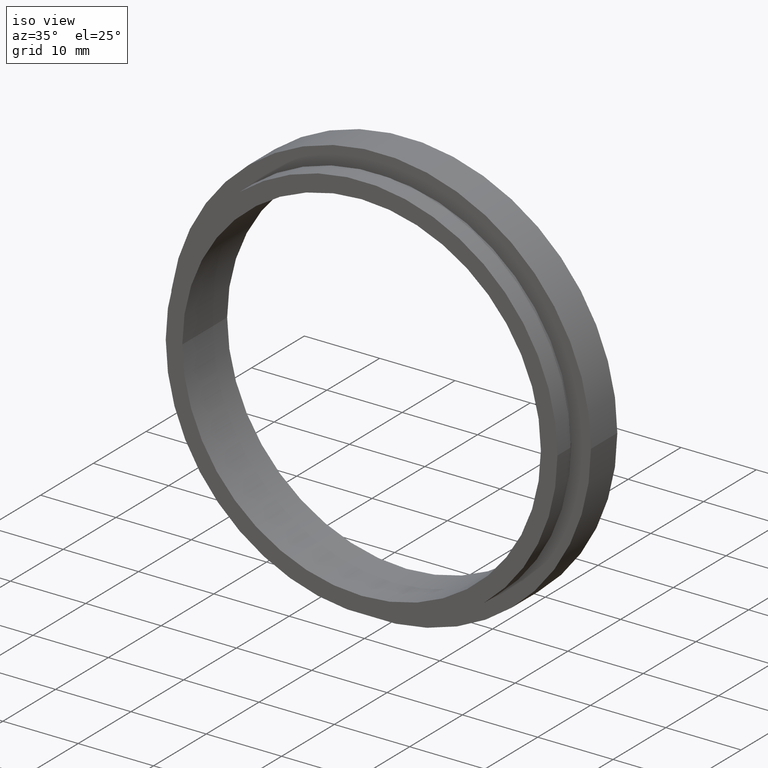
[diagram: clean part render]
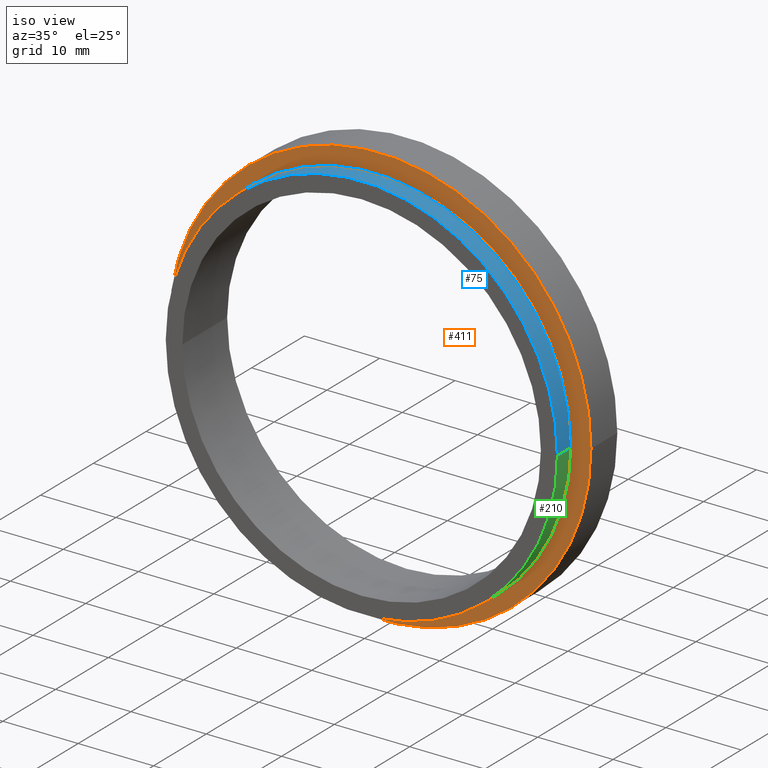
[diagram: same view with three faces highlighted in distinct colors, each labeled with its STEP entity id]
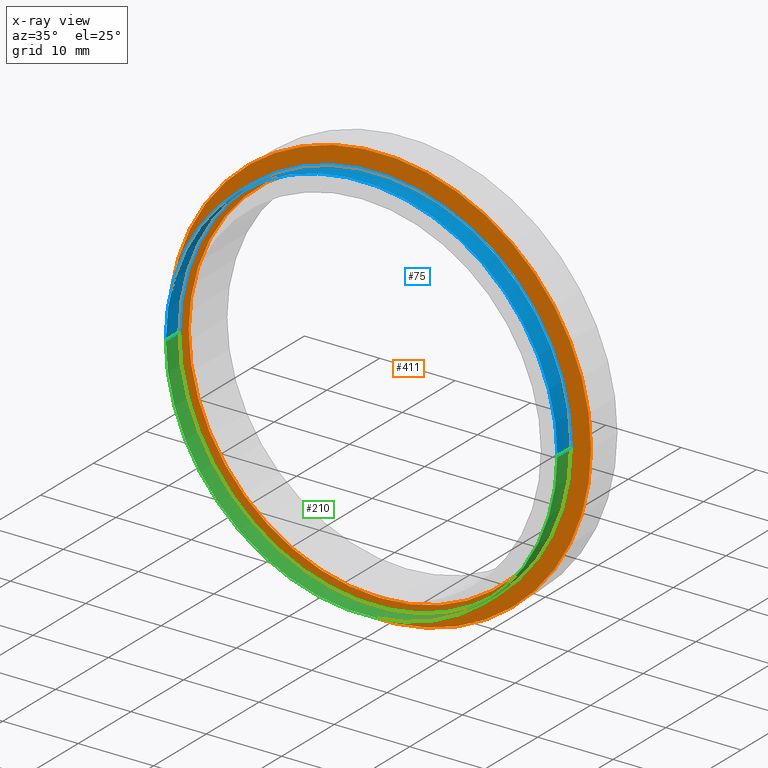
[diagram: x-ray of the same camera — body ghosted, the three highlighted faces saturated]
A machine part, iso view with three faces highlighted in distinct colors.
The next image is the same camera in x-ray (body ghosted, the three faces saturated) — at least one of them is partly hidden behind the body in this view.
Their STEP definitions:

[orange] entity #411 — the highlighted planar face has unit normal (-0, 1, 0).
#4 = EDGE_CURVE ( 'NONE', #302, #423, #382, .T. ) ;
#11 = CARTESIAN_POINT ( 'NONE',  ( -28.00000000000000700, 2.954535588880331100, 0.0000000000000000000 ) ) ;
#20 = CARTESIAN_POINT ( 'NONE',  ( -25.39999999999999900, 2.954535588880331500, 0.0000000000000000000 ) ) ;
#32 = DIRECTION ( 'NONE',  ( -1.224646799147351000E-016, 1.000000000000000000, -0.0000000000000000000 ) ) ;
#55 = EDGE_LOOP ( 'NONE', ( #368, #177 ) ) ;
#74 = AXIS2_PLACEMENT_3D ( 'NONE', #236, #32, #296 ) ;
#76 = EDGE_CURVE ( 'NONE', #413, #92, #327, .T. ) ;
#92 = VERTEX_POINT ( 'NONE', #11 ) ;
#116 = AXIS2_PLACEMENT_3D ( 'NONE', #318, #314, #181 ) ;
#119 = DIRECTION ( 'NONE',  ( -1.000000000000000000, -1.239088197126290600E-016, 0.0000000000000000000 ) ) ;
#130 = CARTESIAN_POINT ( 'NONE',  ( 25.39999999999999900, 2.954535588880337300, 0.0000000000000000000 ) ) ;
#132 = DIRECTION ( 'NONE',  ( -1.224646799147351000E-016, 1.000000000000000000, -0.0000000000000000000 ) ) ;
#134 = CARTESIAN_POINT ( 'NONE',  ( 25.39999999999999900, 2.954535588880337700, 3.110602869834276900E-015 ) ) ;
#144 = CIRCLE ( 'NONE', #330, 28.00000000000000700 ) ;
#154 = DIRECTION ( 'NONE',  ( -1.224646799147351000E-016, 1.000000000000000000, -0.0000000000000000000 ) ) ;
#172 = EDGE_CURVE ( 'NONE', #92, #413, #144, .T. ) ;
#177 = ORIENTED_EDGE ( 'NONE', *, *, #76, .F. ) ;
#181 = DIRECTION ( 'NONE',  ( -1.000000000000000000, -1.195183497228115300E-016, 0.0000000000000000000 ) ) ;
#200 = PLANE ( 'NONE',  #272 ) ;
#231 = EDGE_CURVE ( 'NONE', #423, #302, #347, .T. ) ;
#236 = CARTESIAN_POINT ( 'NONE',  ( 1.706114563249712100E-015, 2.954535588880334600, 0.0000000000000000000 ) ) ;
#245 = CARTESIAN_POINT ( 'NONE',  ( 1.706114563249712100E-015, 2.954535588880334600, 0.0000000000000000000 ) ) ;
#272 = AXIS2_PLACEMENT_3D ( 'NONE', #130, #273, #304 ) ;
#273 = DIRECTION ( 'NONE',  ( -1.224646799147351000E-016, 1.000000000000000000, 0.0000000000000000000 ) ) ;
#296 = DIRECTION ( 'NONE',  ( -1.000000000000000000, -1.195183497228115300E-016, 0.0000000000000000000 ) ) ;
#300 = AXIS2_PLACEMENT_3D ( 'NONE', #245, #132, #306 ) ;
#302 = VERTEX_POINT ( 'NONE', #20 ) ;
#304 = DIRECTION ( 'NONE',  ( -1.000000000000000000, -1.224646799147351000E-016, 0.0000000000000000000 ) ) ;
#306 = DIRECTION ( 'NONE',  ( -1.000000000000000000, -1.239088197126290600E-016, 0.0000000000000000000 ) ) ;
#314 = DIRECTION ( 'NONE',  ( -1.224646799147351000E-016, 1.000000000000000000, -0.0000000000000000000 ) ) ;
#315 = FACE_BOUND ( 'NONE', #344, .T. ) ;
#318 = CARTESIAN_POINT ( 'NONE',  ( 1.706114563249712100E-015, 2.954535588880334600, 0.0000000000000000000 ) ) ;
#324 = CARTESIAN_POINT ( 'NONE',  ( 1.706114563249712100E-015, 2.954535588880334600, 0.0000000000000000000 ) ) ;
#327 = CIRCLE ( 'NONE', #300, 28.00000000000000700 ) ;
#330 = AXIS2_PLACEMENT_3D ( 'NONE', #324, #154, #119 ) ;
#342 = FACE_OUTER_BOUND ( 'NONE', #55, .T. ) ;
#344 = EDGE_LOOP ( 'NONE', ( #366, #391 ) ) ;
#347 = CIRCLE ( 'NONE', #116, 25.39999999999999900 ) ;
#364 = CARTESIAN_POINT ( 'NONE',  ( 28.00000000000001100, 2.954535588880338200, 3.429011037612590100E-015 ) ) ;
#366 = ORIENTED_EDGE ( 'NONE', *, *, #4, .T. ) ;
#368 = ORIENTED_EDGE ( 'NONE', *, *, #172, .F. ) ;
#382 = CIRCLE ( 'NONE', #74, 25.39999999999999900 ) ;
#391 = ORIENTED_EDGE ( 'NONE', *, *, #231, .T. ) ;
#411 = ADVANCED_FACE ( 'NONE', ( #342, #315 ), #200, .F. ) ;
#413 = VERTEX_POINT ( 'NONE', #364 ) ;
#423 = VERTEX_POINT ( 'NONE', #134 ) ;

[blue] entity #75 — the highlighted cylindrical surface (partial cylindrical patch) has radius 26 mm, axis along (-0, 1, -0).
#19 = CARTESIAN_POINT ( 'NONE',  ( 26.00000000000000000, -0.5454644111196653700, 3.184081677783117800E-015 ) ) ;
#23 = CARTESIAN_POINT ( 'NONE',  ( 2.134740942951285500E-015, -0.5454644111196684800, 0.0000000000000000000 ) ) ;
#64 = CARTESIAN_POINT ( 'NONE',  ( -25.99999999999999600, 16.88601823708207300, 0.0000000000000000000 ) ) ;
#65 = ORIENTED_EDGE ( 'NONE', *, *, #128, .F. ) ;
#75 = ADVANCED_FACE ( 'NONE', ( #331 ), #307, .T. ) ;
#83 = ORIENTED_EDGE ( 'NONE', *, *, #408, .F. ) ;
#94 = EDGE_CURVE ( 'NONE', #336, #213, #122, .T. ) ;
#100 = DIRECTION ( 'NONE',  ( -1.000000000000000000, -1.334402673828313300E-016, 0.0000000000000000000 ) ) ;
#122 = LINE ( 'NONE', #410, #317 ) ;
#128 = EDGE_CURVE ( 'NONE', #140, #213, #141, .T. ) ;
#140 = VERTEX_POINT ( 'NONE', #358 ) ;
#141 = CIRCLE ( 'NONE', #259, 25.99999999999999600 ) ;
#147 = AXIS2_PLACEMENT_3D ( 'NONE', #362, #433, #100 ) ;
#148 = LINE ( 'NONE', #64, #157 ) ;
#156 = ORIENTED_EDGE ( 'NONE', *, *, #94, .T. ) ;
#157 = VECTOR ( 'NONE', #206, 1000.000000000000000 ) ;
#175 = AXIS2_PLACEMENT_3D ( 'NONE', #23, #388, #387 ) ;
#187 = EDGE_CURVE ( 'NONE', #208, #336, #350, .T. ) ;
#206 = DIRECTION ( 'NONE',  ( -1.224646799147351000E-016, 1.000000000000000000, -0.0000000000000000000 ) ) ;
#208 = VERTEX_POINT ( 'NONE', #257 ) ;
#209 = DIRECTION ( 'NONE',  ( -1.224646799147351000E-016, 1.000000000000000000, -0.0000000000000000000 ) ) ;
#213 = VERTEX_POINT ( 'NONE', #385 ) ;
#225 = ORIENTED_EDGE ( 'NONE', *, *, #187, .T. ) ;
#227 = CARTESIAN_POINT ( 'NONE',  ( 1.828579243164447600E-015, 1.954535588880333700, 0.0000000000000000000 ) ) ;
#250 = EDGE_LOOP ( 'NONE', ( #225, #156, #65, #83 ) ) ;
#257 = CARTESIAN_POINT ( 'NONE',  ( -25.99999999999999300, -0.5454644111196717000, 0.0000000000000000000 ) ) ;
#259 = AXIS2_PLACEMENT_3D ( 'NONE', #227, #328, #428 ) ;
#307 = CYLINDRICAL_SURFACE ( 'NONE', #147, 25.99999999999999600 ) ;
#317 = VECTOR ( 'NONE', #209, 1000.000000000000000 ) ;
#328 = DIRECTION ( 'NONE',  ( -1.224646799147351000E-016, 1.000000000000000000, -0.0000000000000000000 ) ) ;
#331 = FACE_OUTER_BOUND ( 'NONE', #250, .T. ) ;
#336 = VERTEX_POINT ( 'NONE', #19 ) ;
#350 = CIRCLE ( 'NONE', #175, 25.99999999999999600 ) ;
#358 = CARTESIAN_POINT ( 'NONE',  ( -25.99999999999999300, 1.954535588880330600, 0.0000000000000000000 ) ) ;
#362 = CARTESIAN_POINT ( 'NONE',  ( 0.0000000000000000000, 16.88601823708207700, 0.0000000000000000000 ) ) ;
#385 = CARTESIAN_POINT ( 'NONE',  ( 26.00000000000000000, 1.954535588880336600, 3.184081677783117800E-015 ) ) ;
#387 = DIRECTION ( 'NONE',  ( -1.000000000000000000, -1.209302423156908900E-016, 0.0000000000000000000 ) ) ;
#388 = DIRECTION ( 'NONE',  ( -1.224646799147351000E-016, 1.000000000000000000, -0.0000000000000000000 ) ) ;
#408 = EDGE_CURVE ( 'NONE', #208, #140, #148, .T. ) ;
#410 = CARTESIAN_POINT ( 'NONE',  ( 25.99999999999999600, 16.88601823708208000, 3.184081677783117800E-015 ) ) ;
#428 = DIRECTION ( 'NONE',  ( -1.000000000000000000, -1.167602339599774200E-016, 0.0000000000000000000 ) ) ;
#433 = DIRECTION ( 'NONE',  ( -1.224646799147351000E-016, 1.000000000000000000, -0.0000000000000000000 ) ) ;

[green] entity #210 — the highlighted cylindrical surface (partial cylindrical patch) has radius 26 mm, axis along (-0, 1, -0).
#1 = DIRECTION ( 'NONE',  ( -1.000000000000000000, -1.167602339599774200E-016, 0.0000000000000000000 ) ) ;
#2 = CYLINDRICAL_SURFACE ( 'NONE', #31, 25.99999999999999600 ) ;
#19 = CARTESIAN_POINT ( 'NONE',  ( 26.00000000000000000, -0.5454644111196653700, 3.184081677783117800E-015 ) ) ;
#31 = AXIS2_PLACEMENT_3D ( 'NONE', #425, #353, #258 ) ;
#34 = CIRCLE ( 'NONE', #422, 25.99999999999999600 ) ;
#43 = EDGE_LOOP ( 'NONE', ( #424, #182, #244, #254 ) ) ;
#51 = EDGE_CURVE ( 'NONE', #213, #140, #34, .T. ) ;
#64 = CARTESIAN_POINT ( 'NONE',  ( -25.99999999999999600, 16.88601823708207300, 0.0000000000000000000 ) ) ;
#94 = EDGE_CURVE ( 'NONE', #336, #213, #122, .T. ) ;
#122 = LINE ( 'NONE', #410, #317 ) ;
#140 = VERTEX_POINT ( 'NONE', #358 ) ;
#148 = LINE ( 'NONE', #64, #157 ) ;
#157 = VECTOR ( 'NONE', #206, 1000.000000000000000 ) ;
#158 = DIRECTION ( 'NONE',  ( -1.224646799147351000E-016, 1.000000000000000000, -0.0000000000000000000 ) ) ;
#170 = DIRECTION ( 'NONE',  ( -1.000000000000000000, -1.209302423156908900E-016, 0.0000000000000000000 ) ) ;
#182 = ORIENTED_EDGE ( 'NONE', *, *, #396, .T. ) ;
#198 = CIRCLE ( 'NONE', #207, 25.99999999999999600 ) ;
#206 = DIRECTION ( 'NONE',  ( -1.224646799147351000E-016, 1.000000000000000000, -0.0000000000000000000 ) ) ;
#207 = AXIS2_PLACEMENT_3D ( 'NONE', #399, #373, #170 ) ;
#208 = VERTEX_POINT ( 'NONE', #257 ) ;
#209 = DIRECTION ( 'NONE',  ( -1.224646799147351000E-016, 1.000000000000000000, -0.0000000000000000000 ) ) ;
#210 = ADVANCED_FACE ( 'NONE', ( #241 ), #2, .T. ) ;
#213 = VERTEX_POINT ( 'NONE', #385 ) ;
#241 = FACE_OUTER_BOUND ( 'NONE', #43, .T. ) ;
#244 = ORIENTED_EDGE ( 'NONE', *, *, #408, .T. ) ;
#254 = ORIENTED_EDGE ( 'NONE', *, *, #51, .F. ) ;
#257 = CARTESIAN_POINT ( 'NONE',  ( -25.99999999999999300, -0.5454644111196717000, 0.0000000000000000000 ) ) ;
#258 = DIRECTION ( 'NONE',  ( -1.000000000000000000, -1.334402673828313300E-016, 0.0000000000000000000 ) ) ;
#317 = VECTOR ( 'NONE', #209, 1000.000000000000000 ) ;
#336 = VERTEX_POINT ( 'NONE', #19 ) ;
#353 = DIRECTION ( 'NONE',  ( -1.224646799147351000E-016, 1.000000000000000000, -0.0000000000000000000 ) ) ;
#358 = CARTESIAN_POINT ( 'NONE',  ( -25.99999999999999300, 1.954535588880330600, 0.0000000000000000000 ) ) ;
#369 = CARTESIAN_POINT ( 'NONE',  ( 1.828579243164447600E-015, 1.954535588880333700, 0.0000000000000000000 ) ) ;
#373 = DIRECTION ( 'NONE',  ( -1.224646799147351000E-016, 1.000000000000000000, -0.0000000000000000000 ) ) ;
#385 = CARTESIAN_POINT ( 'NONE',  ( 26.00000000000000000, 1.954535588880336600, 3.184081677783117800E-015 ) ) ;
#396 = EDGE_CURVE ( 'NONE', #336, #208, #198, .T. ) ;
#399 = CARTESIAN_POINT ( 'NONE',  ( 2.134740942951285500E-015, -0.5454644111196684800, 0.0000000000000000000 ) ) ;
#408 = EDGE_CURVE ( 'NONE', #208, #140, #148, .T. ) ;
#410 = CARTESIAN_POINT ( 'NONE',  ( 25.99999999999999600, 16.88601823708208000, 3.184081677783117800E-015 ) ) ;
#422 = AXIS2_PLACEMENT_3D ( 'NONE', #369, #158, #1 ) ;
#424 = ORIENTED_EDGE ( 'NONE', *, *, #94, .F. ) ;
#425 = CARTESIAN_POINT ( 'NONE',  ( 0.0000000000000000000, 16.88601823708207700, 0.0000000000000000000 ) ) ;